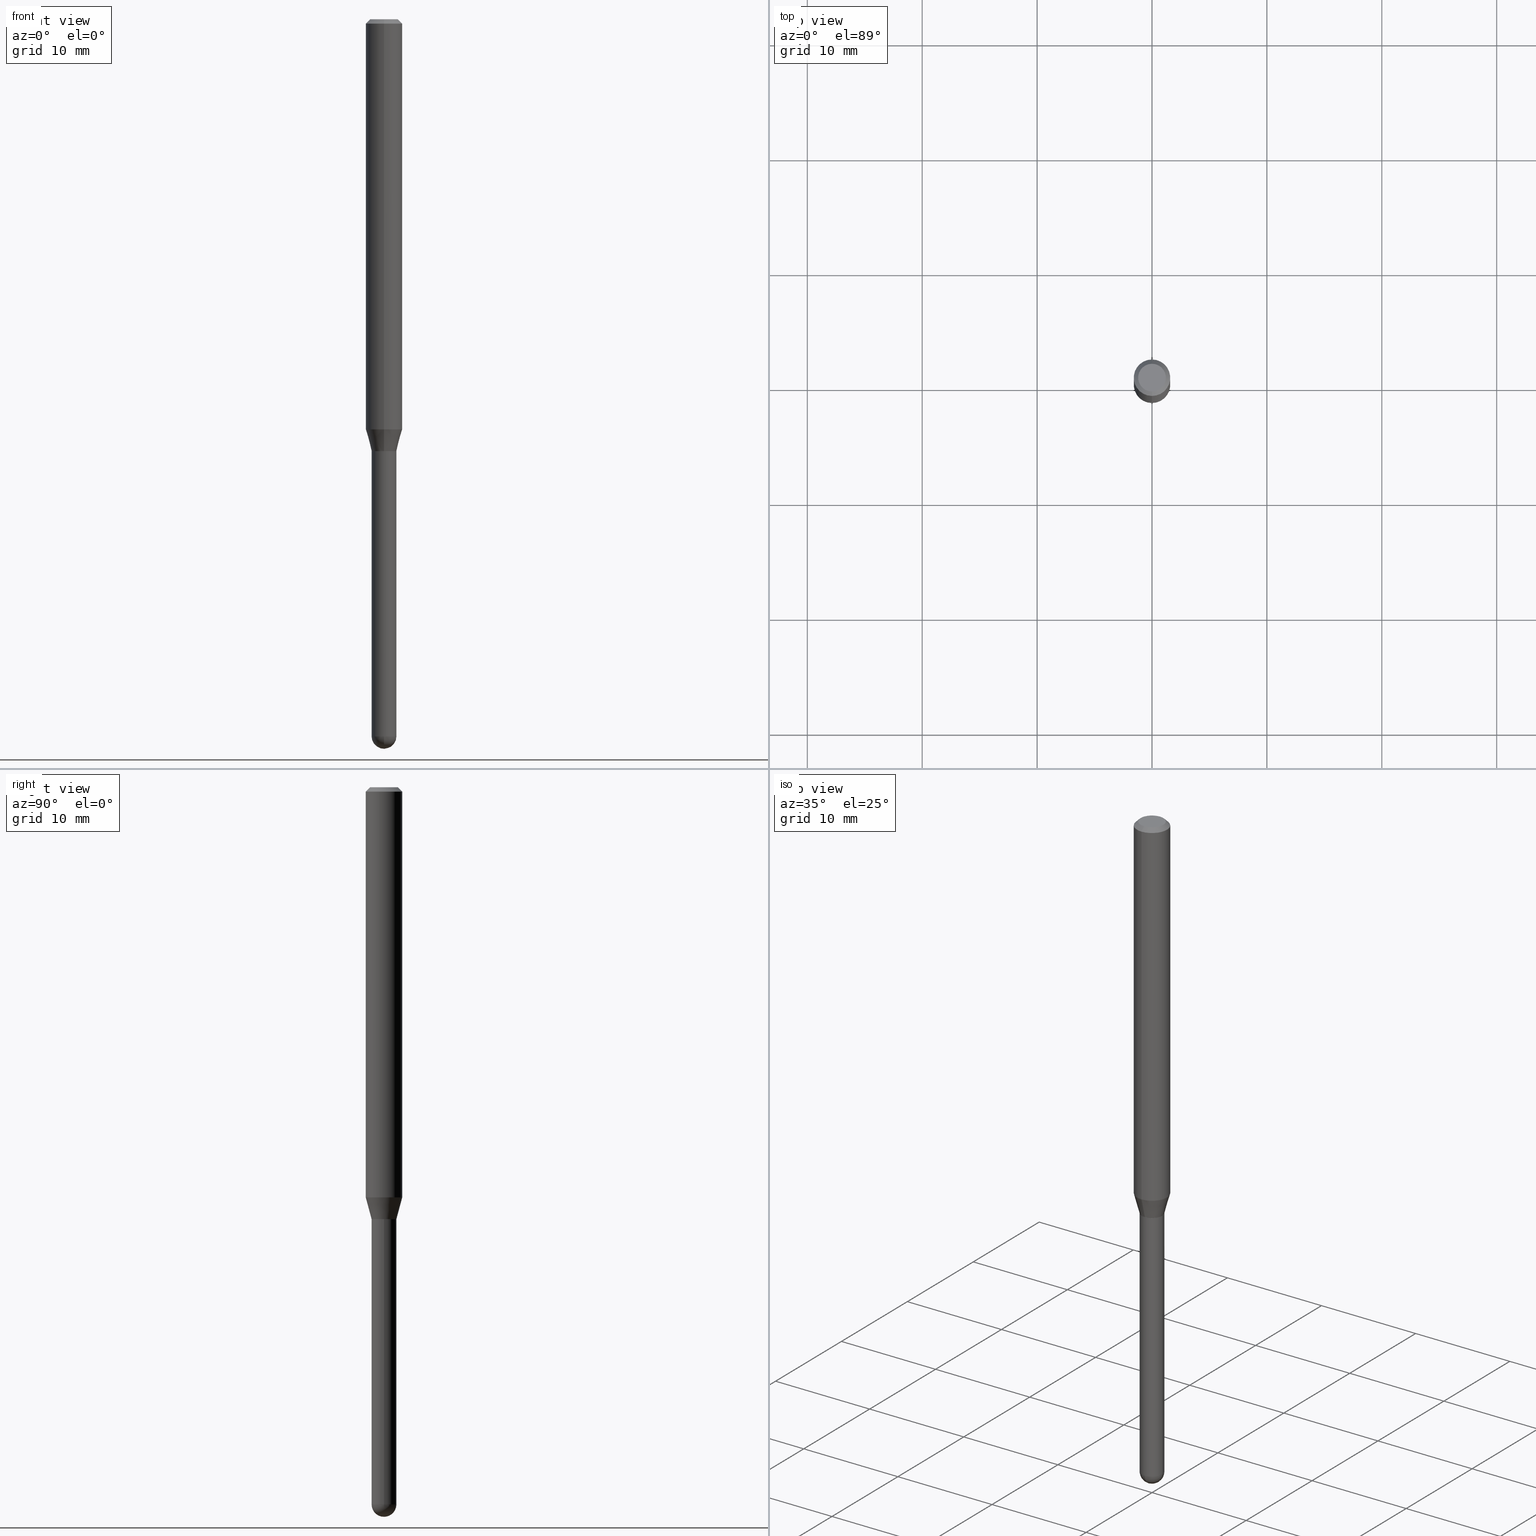
[diagram: canonical four-view strip — front | top / right | iso, engineering-drawing reading convention]
A machine part, canonical four-view strip (front | top / right | iso — engineering-drawing reading convention). The complete STEP part file that produces these views, byte-faithful:
ISO-10303-21;
HEADER;
FILE_DESCRIPTION (( 'STEP AP203' ),
    '1' );
FILE_NAME ('04529.STEP',
    '2024-03-08T20:32:00',
    ( '' ),
    ( '' ),
    'SwSTEP 2.0',
    'SolidWorks 2023',
    '' );
FILE_SCHEMA (( 'CONFIG_CONTROL_DESIGN' ));
ENDSEC;

DATA;
#1 = CARTESIAN_POINT ( 'NONE',  ( 3.316907271900976096E-16, 0.04749999999999999362, -1.985990090085630098E-16 ) ) ;
#2 = DIRECTION ( 'NONE',  ( -1.000000000000000000, 6.982962677686265922E-15, -4.876176775795935793E-29 ) ) ;
#3 = CIRCLE ( 'NONE', #209, 0.04749999999999999362 ) ;
#4 = DIRECTION ( 'NONE',  ( -6.982962677686266711E-15, -1.000000000000000000, 6.427877632151260241E-15 ) ) ;
#5 = APPROVAL_PERSON_ORGANIZATION ( #84, #41, #156 ) ;
#6 = APPROVAL_DATE_TIME ( #482, #41 ) ;
#7 = CARTESIAN_POINT ( 'NONE',  ( 6.006105134470961845E-29, -8.585520139103407419E-15, -2.457500000000000018 ) ) ;
#8 = DIRECTION ( 'NONE',  ( 1.000000000000000000, -6.982962677686276177E-15, 0.000000000000000000 ) ) ;
#9 = EDGE_CURVE ( 'NONE', #407, #503, #321, .T. ) ;
#10 = PERSON_AND_ORGANIZATION ( #325, #186 ) ;
#11 = DIRECTION ( 'NONE',  ( -6.982962677686265922E-15, -1.000000000000000000, 6.427877632151176622E-15 ) ) ;
#12 = EDGE_CURVE ( 'NONE', #73, #64, #259, .T. ) ;
#13 = DIRECTION ( 'NONE',  ( 1.000000000000000000, 0.000000000000000000, 0.000000000000000000 ) ) ;
#14 = DIRECTION ( 'NONE',  ( 6.982962677686266711E-15, 1.000000000000000000, 0.000000000000000000 ) ) ;
#15 = ORIENTED_EDGE ( 'NONE', *, *, #207, .F. ) ;
#16 = CALENDAR_DATE ( 2024, 8, 3 ) ;
#17 = LINE ( 'NONE', #372, #311 ) ;
#18 = ORIENTED_EDGE ( 'NONE', *, *, #12, .F. ) ;
#19 = DIRECTION ( 'NONE',  ( -2.445365064724350852E-29, 3.491629902519587730E-15, 1.000000000000000000 ) ) ;
#20 = CC_DESIGN_PERSON_AND_ORGANIZATION_ASSIGNMENT ( #10, #135, ( #216 ) ) ;
#21 = CIRCLE ( 'NONE', #374, 0.04249999999999999611 ) ;
#22 = ORIENTED_EDGE ( 'NONE', *, *, #114, .F. ) ;
#23 = DIRECTION ( 'NONE',  ( -6.982962677686266711E-15, -1.000000000000000000, 3.491629902519587335E-15 ) ) ;
#24 = CARTESIAN_POINT ( 'NONE',  ( 3.019806626980801702E-16, 0.04249999999999504174, -1.480000000000000426 ) ) ;
#25 = EDGE_CURVE ( 'NONE', #257, #106, #178, .T. ) ;
#26 = CARTESIAN_POINT ( 'NONE',  ( 3.436615762499943104E-29, -4.906993451780404491E-15, -1.405358983848625787 ) ) ;
#27 = CONICAL_SURFACE ( 'NONE', #98, 0.04199999999999999567, 0.7853981633969275844 ) ;
#28 = APPROVAL_PERSON_ORGANIZATION ( #133, #510, #95 ) ;
#29 = CARTESIAN_POINT ( 'NONE',  ( 6.009739591199973545E-29, -8.580315390207031617E-15, -2.457500000000000018 ) ) ;
#30 = EDGE_CURVE ( 'NONE', #99, #458, #3, .T. ) ;
#31 = DIRECTION ( 'NONE',  ( 6.982962677686265922E-15, 1.000000000000000000, -6.427877632151214487E-15 ) ) ;
#32 = VERTEX_POINT ( 'NONE', #477 ) ;
#33 = ADVANCED_FACE ( 'NONE', ( #79 ), #223, .T. ) ;
#34 = AXIS2_PLACEMENT_3D ( 'NONE', #233, #436, #512 ) ;
#35 = AXIS2_PLACEMENT_3D ( 'NONE', #258, #308, #63 ) ;
#36 = DIRECTION ( 'NONE',  ( -4.937700262161976356E-15, -0.7071067811861768693, 0.7071067811869181652 ) ) ;
#37 = CARTESIAN_POINT ( 'NONE',  ( 4.440892098500972274E-16, 0.06249999999999995143, -0.01500000000000028394 ) ) ;
#38 = ADVANCED_FACE ( 'NONE', ( #444 ), #299, .T. ) ;
#39 = CYLINDRICAL_SURFACE ( 'NONE', #171, 0.06250000000000000000 ) ;
#40 = DIRECTION ( 'NONE',  ( 2.445365064724351132E-29, -3.491629902519587730E-15, -1.000000000000000000 ) ) ;
#41 = APPROVAL ( #203, 'UNSPECIFIED' ) ;
#42 = DIRECTION ( 'NONE',  ( -1.000000000000000000, 7.105427357601001070E-15, -4.926315508542082329E-29 ) ) ;
#43 = DIRECTION ( 'NONE',  ( -6.982962677686266711E-15, -1.000000000000000000, 6.427877632151260241E-15 ) ) ;
#44 = AXIS2_PLACEMENT_3D ( 'NONE', #280, #42, #201 ) ;
#45 = ORIENTED_EDGE ( 'NONE', *, *, #357, .T. ) ;
#46 = MECHANICAL_CONTEXT ( 'NONE', #282, 'mechanical' ) ;
#47 = CARTESIAN_POINT ( 'NONE',  ( -0.04250000000000000999, -6.571873223149400401E-15, -2.457500000000000018 ) ) ;
#48 = EDGE_CURVE ( 'NONE', #59, #197, #270, .T. ) ;
#49 = SECURITY_CLASSIFICATION_LEVEL ( 'unclassified' ) ;
#50 = ADVANCED_FACE ( 'NONE', ( #82 ), #428, .T. ) ;
#51 = ORIENTED_EDGE ( 'NONE', *, *, #127, .T. ) ;
#52 = AXIS2_PLACEMENT_3D ( 'NONE', #356, #433, #359 ) ;
#53 = AXIS2_PLACEMENT_3D ( 'NONE', #358, #118, #474 ) ;
#54 = DATE_TIME_ROLE ( 'classification_date' ) ;
#55 = CARTESIAN_POINT ( 'NONE',  ( -3.019806626979823514E-16, -0.04250000000000855871, -2.457500000000000018 ) ) ;
#56 = ADVANCED_FACE ( 'NONE', ( #366 ), #238, .T. ) ;
#57 = CYLINDRICAL_SURFACE ( 'NONE', #363, 0.04249999999999991979 ) ;
#58 = DIMENSIONAL_EXPONENTS ( 1.000000000000000000, 0.000000000000000000, 0.000000000000000000, 0.000000000000000000, 0.000000000000000000, 0.000000000000000000, 0.000000000000000000 ) ;
#59 = VERTEX_POINT ( 'NONE', #283 ) ;
#60 = FACE_OUTER_BOUND ( 'NONE', #291, .T. ) ;
#61 = AXIS2_PLACEMENT_3D ( 'NONE', #450, #498, #14 ) ;
#62 = AXIS2_PLACEMENT_3D ( 'NONE', #504, #188, #88 ) ;
#63 = DIRECTION ( 'NONE',  ( -6.982962677686266711E-15, -1.000000000000000000, 3.491629902519587730E-15 ) ) ;
#64 = VERTEX_POINT ( 'NONE', #318 ) ;
#65 = ADVANCED_FACE ( 'NONE', ( #285 ), #162, .F. ) ;
#66 = LINE ( 'NONE', #219, #396 ) ;
#67 = ORIENTED_EDGE ( 'NONE', *, *, #451, .F. ) ;
#68 = VERTEX_POINT ( 'NONE', #47 ) ;
#69 = AXIS2_PLACEMENT_3D ( 'NONE', #199, #329, #8 ) ;
#70 = EDGE_LOOP ( 'NONE', ( #269, #204, #101, #18 ) ) ;
#71 = VECTOR ( 'NONE', #116, 39.37007874015748143 ) ;
#72 = CARTESIAN_POINT ( 'NONE',  ( -4.364351673553916201E-16, -0.06250000000000000000, 2.182268689074742331E-16 ) ) ;
#73 = VERTEX_POINT ( 'NONE', #37 ) ;
#74 = ORIENTED_EDGE ( 'NONE', *, *, #481, .F. ) ;
#75 = LINE ( 'NONE', #429, #271 ) ;
#76 = DIRECTION ( 'NONE',  ( 1.000000000000000000, -6.982962677686276177E-15, 0.000000000000000000 ) ) ;
#77 = LINE ( 'NONE', #395, #454 ) ;
#78 = CIRCLE ( 'NONE', #413, 0.04250000000000000999 ) ;
#79 = FACE_OUTER_BOUND ( 'NONE', #103, .T. ) ;
#80 = ADVANCED_FACE ( 'NONE', ( #166 ), #475, .T. ) ;
#81 = SPHERICAL_SURFACE ( 'NONE', #200, 0.04249999999999995448 ) ;
#82 = FACE_OUTER_BOUND ( 'NONE', #298, .T. ) ;
#83 = CC_DESIGN_DATE_AND_TIME_ASSIGNMENT ( #292, #410, ( #176 ) ) ;
#84 = PERSON_AND_ORGANIZATION ( #325, #186 ) ;
#85 = FACE_OUTER_BOUND ( 'NONE', #190, .T. ) ;
#86 = DIRECTION ( 'NONE',  ( -2.445365064724351132E-29, 3.491629902519587730E-15, 1.000000000000000000 ) ) ;
#87 = ORIENTED_EDGE ( 'NONE', *, *, #377, .T. ) ;
#88 = DIRECTION ( 'NONE',  ( 1.000000000000000000, -6.982962677686273810E-15, 0.000000000000000000 ) ) ;
#89 = AXIS2_PLACEMENT_3D ( 'NONE', #173, #495, #296 ) ;
#90 = DIRECTION ( 'NONE',  ( -2.445468806185136597E-29, 3.491481338843145583E-15, 1.000000000000000000 ) ) ;
#91 = CIRCLE ( 'NONE', #497, 0.04199999999999999567 ) ;
#92 = ORIENTED_EDGE ( 'NONE', *, *, #48, .F. ) ;
#93 = APPROVAL_STATUS ( 'not_yet_approved' ) ;
#94 = DIRECTION ( 'NONE',  ( -2.445468806185136877E-29, 3.491481338843145188E-15, 1.000000000000000000 ) ) ;
#95 = APPROVAL_ROLE ( '' ) ;
#96 = CALENDAR_DATE ( 2024, 8, 3 ) ;
#97 = CARTESIAN_POINT ( 'NONE',  ( -2.932844324627869123E-16, -0.04200000000000516515, -1.479999999999999982 ) ) ;
#98 = AXIS2_PLACEMENT_3D ( 'NONE', #417, #294, #214 ) ;
#99 = VERTEX_POINT ( 'NONE', #160 ) ;
#100 = CARTESIAN_POINT ( 'NONE',  ( 0.000000000000000000, 0.000000000000000000, 0.000000000000000000 ) ) ;
#101 = ORIENTED_EDGE ( 'NONE', *, *, #370, .T. ) ;
#102 = FACE_OUTER_BOUND ( 'NONE', #462, .T. ) ;
#103 = EDGE_LOOP ( 'NONE', ( #489, #284, #456, #352 ) ) ;
#104 = ADVANCED_FACE ( 'NONE', ( #246 ), #476, .T. ) ;
#105 = CARTESIAN_POINT ( 'NONE',  ( 4.364351673553919652E-16, 0.06249999999999995143, -0.01500000000000028394 ) ) ;
#106 = VERTEX_POINT ( 'NONE', #202 ) ;
#107 = SECURITY_CLASSIFICATION ( '', '', #49 ) ;
#108 = DIRECTION ( 'NONE',  ( 4.937700262164548042E-15, 0.7071067811865451302, -0.7071067811865499042 ) ) ;
#109 = ORIENTED_EDGE ( 'NONE', *, *, #320, .F. ) ;
#110 = ORIENTED_EDGE ( 'NONE', *, *, #140, .T. ) ;
#111 = ORIENTED_EDGE ( 'NONE', *, *, #12, .T. ) ;
#112 = CARTESIAN_POINT ( 'NONE',  ( -0.04249999999999999611, -6.571873223149400401E-15, -1.479999999999999982 ) ) ;
#113 = VERTEX_POINT ( 'NONE', #409 ) ;
#114 = EDGE_CURVE ( 'NONE', #250, #113, #243, .T. ) ;
#115 = CIRCLE ( 'NONE', #406, 0.04250000000000020428 ) ;
#116 = DIRECTION ( 'NONE',  ( -2.445365064724350852E-29, 3.491629902519587730E-15, 1.000000000000000000 ) ) ;
#117 = VERTEX_POINT ( 'NONE', #242 ) ;
#118 = DIRECTION ( 'NONE',  ( -2.445365064724351132E-29, 3.491629902519587730E-15, 1.000000000000000000 ) ) ;
#119 = DIRECTION ( 'NONE',  ( -6.982962677686265922E-15, -1.000000000000000000, 3.483106191921935554E-15 ) ) ;
#120 = CARTESIAN_POINT ( 'NONE',  ( -2.967759138016315464E-16, -0.04250000000000536682, -1.479999999999999760 ) ) ;
#121 = EDGE_CURVE ( 'NONE', #113, #250, #461, .T. ) ;
#122 = DIRECTION ( 'NONE',  ( -6.982962677686266711E-15, -1.000000000000000000, 3.491629902519587730E-15 ) ) ;
#123 = CARTESIAN_POINT ( 'NONE',  ( -4.287811248607203282E-16, -0.06250000000000005551, -0.01499999999999984852 ) ) ;
#124 = DIRECTION ( 'NONE',  ( -2.445365064724351132E-29, 3.491629902519587730E-15, 1.000000000000000000 ) ) ;
#125 = CARTESIAN_POINT ( 'NONE',  ( -4.364351673553569595E-16, -0.06250000000000487110, -1.405358983848625565 ) ) ;
#126 = CARTESIAN_POINT ( 'NONE',  ( 3.619140295792040102E-29, -5.167612255728990266E-15, -1.480000000000000426 ) ) ;
#127 = EDGE_CURVE ( 'NONE', #197, #113, #77, .T. ) ;
#128 =( CONVERSION_BASED_UNIT ( 'INCH', #484 ) LENGTH_UNIT ( ) NAMED_UNIT ( #58 ) );
#129 = CARTESIAN_POINT ( 'NONE',  ( 3.619140295792039541E-29, -5.167612255728989477E-15, -1.479999999999999982 ) ) ;
#130 = CIRCLE ( 'NONE', #340, 0.06250000000000000000 ) ;
#131 = FACE_OUTER_BOUND ( 'NONE', #431, .T. ) ;
#132 = LOCAL_TIME ( 15, 32, 0.000000000000000000, #408 ) ;
#133 = PERSON_AND_ORGANIZATION ( #325, #186 ) ;
#134 = ORIENTED_EDGE ( 'NONE', *, *, #289, .T. ) ;
#135 = PERSON_AND_ORGANIZATION_ROLE ( 'creator' ) ;
#136 = VERTEX_POINT ( 'NONE', #55 ) ;
#137 = DIRECTION ( 'NONE',  ( -6.982962677686265922E-15, -1.000000000000000000, 3.491629902519587730E-15 ) ) ;
#138 = AXIS2_PLACEMENT_3D ( 'NONE', #401, #281, #119 ) ;
#139 = CIRCLE ( 'NONE', #35, 0.04749999999999999362 ) ;
#140 = EDGE_CURVE ( 'NONE', #483, #106, #290, .T. ) ;
#141 = FACE_OUTER_BOUND ( 'NONE', #231, .T. ) ;
#142 = ADVANCED_FACE ( 'NONE', ( #60 ), #57, .F. ) ;
#143 = ORIENTED_EDGE ( 'NONE', *, *, #207, .T. ) ;
#144 = CC_DESIGN_PERSON_AND_ORGANIZATION_ASSIGNMENT ( #371, #253, ( #107 ) ) ;
#145 = MANIFOLD_SOLID_BREP ( 'Body-Move/Copy2[2]', #279 ) ;
#146 = ORIENTED_EDGE ( 'NONE', *, *, #140, .F. ) ;
#147 = DIRECTION ( 'NONE',  ( -2.445365064724350852E-29, 3.491629902519587730E-15, 1.000000000000000000 ) ) ;
#148 = EDGE_CURVE ( 'NONE', #59, #250, #17, .T. ) ;
#149 = FACE_OUTER_BOUND ( 'NONE', #419, .T. ) ;
#150 = ORIENTED_EDGE ( 'NONE', *, *, #418, .F. ) ;
#151 = AXIS2_PLACEMENT_3D ( 'NONE', #485, #159, #439 ) ;
#152 = ORIENTED_EDGE ( 'NONE', *, *, #114, .T. ) ;
#153 = AXIS2_PLACEMENT_3D ( 'NONE', #330, #208, #13 ) ;
#154 = CARTESIAN_POINT ( 'NONE',  ( 3.619140295792039541E-29, -5.167612255728989477E-15, -1.479999999999999982 ) ) ;
#155 = ORIENTED_EDGE ( 'NONE', *, *, #30, .T. ) ;
#156 = APPROVAL_ROLE ( '' ) ;
#157 = EDGE_CURVE ( 'NONE', #302, #32, #331, .T. ) ;
#158 = DIRECTION ( 'NONE',  ( -1.000000000000000000, 6.982962677686265922E-15, -4.883557194083112901E-29 ) ) ;
#159 = DIRECTION ( 'NONE',  ( 2.445365064724351132E-29, -3.491629902519587730E-15, -1.000000000000000000 ) ) ;
#160 = CARTESIAN_POINT ( 'NONE',  ( -3.773273898774340269E-16, -0.04749999999999999362, 1.003592430919151796E-16 ) ) ;
#161 = AXIS2_PLACEMENT_3D ( 'NONE', #154, #361, #198 ) ;
#162 = PLANE ( 'NONE',  #235 ) ;
#163 = ADVANCED_FACE ( 'NONE', ( #141 ), #354, .T. ) ;
#164 = CALENDAR_DATE ( 2024, 8, 3 ) ;
#165 = DIRECTION ( 'NONE',  ( 2.438088387897960049E-29, -3.491481338843145188E-15, -1.000000000000000000 ) ) ;
#166 = FACE_OUTER_BOUND ( 'NONE', #502, .T. ) ;
#167 = EDGE_LOOP ( 'NONE', ( #252, #155 ) ) ;
#168 = APPROVAL_DATE_TIME ( #170, #510 ) ;
#169 = DIRECTION ( 'NONE',  ( 1.000000000000000000, -6.982962677686266711E-15, 4.876176775795935793E-29 ) ) ;
#170 = DATE_AND_TIME ( #375, #132 ) ;
#171 = AXIS2_PLACEMENT_3D ( 'NONE', #240, #313, #315 ) ;
#172 = COORDINATED_UNIVERSAL_TIME_OFFSET ( 5, 0, .BEHIND. ) ;
#173 = CARTESIAN_POINT ( 'NONE',  ( 3.619140295792039541E-29, -5.167612255728989477E-15, -1.479999999999999982 ) ) ;
#174 = EDGE_LOOP ( 'NONE', ( #262, #349, #15, #304 ) ) ;
#175 = APPLICATION_PROTOCOL_DEFINITION ( 'international standard', 'config_control_design', 1994, #234 ) ;
#176 = PRODUCT_DEFINITION ( 'UNKNOWN', '', #216, #317 ) ;
#177 = PLANE ( 'NONE',  #421 ) ;
#178 = CIRCLE ( 'NONE', #69, 0.04249999999999999611 ) ;
#179 = AXIS2_PLACEMENT_3D ( 'NONE', #398, #165, #2 ) ;
#180 = ORIENTED_EDGE ( 'NONE', *, *, #460, .T. ) ;
#181 = DIRECTION ( 'NONE',  ( -6.982962677686265922E-15, -1.000000000000000000, 4.370956789862821150E-15 ) ) ;
#182 = VERTEX_POINT ( 'NONE', #412 ) ;
#183 = CARTESIAN_POINT ( 'NONE',  ( 3.668047597086542918E-31, -5.237444853779404496E-17, -0.01500000000000006710 ) ) ;
#184 = ORIENTED_EDGE ( 'NONE', *, *, #320, .T. ) ;
#185 = AXIS2_PLACEMENT_3D ( 'NONE', #126, #124, #194 ) ;
#186 = ORGANIZATION ( 'UNSPECIFIED', 'UNSPECIFIED', '' ) ;
#187 = ORIENTED_EDGE ( 'NONE', *, *, #339, .F. ) ;
#188 = DIRECTION ( 'NONE',  ( -2.445468806185136597E-29, 3.491481338843145583E-15, 1.000000000000000000 ) ) ;
#189 = DIRECTION ( 'NONE',  ( -6.982962677686265922E-15, -1.000000000000000000, 6.504399984914913214E-15 ) ) ;
#190 = EDGE_LOOP ( 'NONE', ( #67, #260, #464, #305 ) ) ;
#191 = ADVANCED_FACE ( 'NONE', ( #453 ), #27, .T. ) ;
#192 = AXIS2_PLACEMENT_3D ( 'NONE', #100, #420, #23 ) ;
#193 = LOCAL_TIME ( 15, 32, 0.000000000000000000, #172 ) ;
#194 = DIRECTION ( 'NONE',  ( -6.982962677686265922E-15, -1.000000000000000000, 6.504399984914913214E-15 ) ) ;
#195 = FACE_OUTER_BOUND ( 'NONE', #174, .T. ) ;
#196 = DIRECTION ( 'NONE',  ( -2.445365064724351132E-29, 3.491629902519587730E-15, 1.000000000000000000 ) ) ;
#197 = VERTEX_POINT ( 'NONE', #97 ) ;
#198 = DIRECTION ( 'NONE',  ( -6.982962677686265922E-15, -1.000000000000000000, 6.427877632151176622E-15 ) ) ;
#199 = CARTESIAN_POINT ( 'NONE',  ( 3.619293833154002365E-29, -5.167392381487854879E-15, -1.479999999999999982 ) ) ;
#200 = AXIS2_PLACEMENT_3D ( 'NONE', #511, #158, #31 ) ;
#201 = DIRECTION ( 'NONE',  ( -7.105427357601001070E-15, -1.000000000000000000, 0.000000000000000000 ) ) ;
#202 = CARTESIAN_POINT ( 'NONE',  ( 0.04249999999999999611, -5.464168295289522318E-15, -1.479999999999999982 ) ) ;
#203 = APPROVAL_STATUS ( 'not_yet_approved' ) ;
#204 = ORIENTED_EDGE ( 'NONE', *, *, #267, .T. ) ;
#205 = APPROVAL_ROLE ( '' ) ;
#206 = CARTESIAN_POINT ( 'NONE',  ( 3.617917613259677502E-29, -5.165866440777731178E-15, -1.479500000000000259 ) ) ;
#207 = EDGE_CURVE ( 'NONE', #68, #136, #78, .T. ) ;
#208 = DIRECTION ( 'NONE',  ( 0.000000000000000000, 0.000000000000000000, 1.000000000000000000 ) ) ;
#209 = AXIS2_PLACEMENT_3D ( 'NONE', #480, #196, #122 ) ;
#210 = VECTOR ( 'NONE', #108, 39.37007874015748143 ) ;
#211 = DATE_AND_TIME ( #490, #193 ) ;
#212 = DIRECTION ( 'NONE',  ( -2.445468806185136597E-29, 3.491481338843145583E-15, 1.000000000000000000 ) ) ;
#213 = EDGE_CURVE ( 'NONE', #182, #73, #376, .T. ) ;
#214 = DIRECTION ( 'NONE',  ( -6.982962677686265922E-15, -1.000000000000000000, 6.504399984914913214E-15 ) ) ;
#215 = CLOSED_SHELL ( 'NONE', ( #80, #397, #432, #389, #274 ) ) ;
#216 = PRODUCT_DEFINITION_FORMATION_WITH_SPECIFIED_SOURCE ( 'ANY', '', #442, .NOT_KNOWN. ) ;
#217 = DIRECTION ( 'NONE',  ( 1.000000000000000000, -6.982962677686273810E-15, 0.000000000000000000 ) ) ;
#218 = ORIENTED_EDGE ( 'NONE', *, *, #496, .F. ) ;
#219 = CARTESIAN_POINT ( 'NONE',  ( 3.019806626980419597E-16, 0.04249999999999991979, -1.483942708570821896E-16 ) ) ;
#220 = ORIENTED_EDGE ( 'NONE', *, *, #121, .T. ) ;
#221 = ORIENTED_EDGE ( 'NONE', *, *, #370, .F. ) ;
#222 = DIRECTION ( 'NONE',  ( 1.839019923739650408E-15, 0.2588190451025320082, 0.9659258262890650926 ) ) ;
#223 = CONICAL_SURFACE ( 'NONE', #52, 0.04199999999999999567, 0.7853981633969275844 ) ;
#224 = LOCAL_TIME ( 15, 32, 0.000000000000000000, #447 ) ;
#225 = ADVANCED_FACE ( 'NONE', ( #102 ), #177, .F. ) ;
#226 = DIRECTION ( 'NONE',  ( -2.445468806185136597E-29, 3.491481338843145583E-15, 1.000000000000000000 ) ) ;
#227 = ORIENTED_EDGE ( 'NONE', *, *, #357, .F. ) ;
#228 = ORIENTED_EDGE ( 'NONE', *, *, #481, .T. ) ;
#229 = DIRECTION ( 'NONE',  ( 1.000000000000000000, -6.982962677686266711E-15, 4.876176775795935793E-29 ) ) ;
#230 = ADVANCED_FACE ( 'NONE', ( #131 ), #301, .F. ) ;
#231 = EDGE_LOOP ( 'NONE', ( #180, #393, #218, #383 ) ) ;
#232 = CARTESIAN_POINT ( 'NONE',  ( 0.04250000000000000999, -7.170629799649109504E-15, -2.457500000000000018 ) ) ;
#233 = CARTESIAN_POINT ( 'NONE',  ( 0.000000000000000000, 0.000000000000000000, 0.000000000000000000 ) ) ;
#234 = APPLICATION_CONTEXT ( 'configuration controlled 3d designs of mechanical parts and assemblies' ) ;
#235 = AXIS2_PLACEMENT_3D ( 'NONE', #1, #399, #369 ) ;
#236 = CC_DESIGN_SECURITY_CLASSIFICATION ( #107, ( #216 ) ) ;
#237 = LINE ( 'NONE', #443, #347 ) ;
#238 = CYLINDRICAL_SURFACE ( 'NONE', #34, 0.06250000000000000000 ) ;
#239 = ORIENTED_EDGE ( 'NONE', *, *, #339, .T. ) ;
#240 = CARTESIAN_POINT ( 'NONE',  ( 0.000000000000000000, 0.000000000000000000, 0.000000000000000000 ) ) ;
#241 = CARTESIAN_POINT ( 'NONE',  ( 3.668047597086542918E-31, -5.237444853779404496E-17, -0.01500000000000006710 ) ) ;
#242 = CARTESIAN_POINT ( 'NONE',  ( 3.730349362740885756E-16, 0.04249999999999504174, -1.480000000000000426 ) ) ;
#243 = CIRCLE ( 'NONE', #322, 0.04249999999999964917 ) ;
#244 = CIRCLE ( 'NONE', #430, 0.06250000000000000000 ) ;
#245 = CARTESIAN_POINT ( 'NONE',  ( 3.619140295792040102E-29, -5.167612255728990266E-15, -1.480000000000000426 ) ) ;
#246 = FACE_OUTER_BOUND ( 'NONE', #287, .T. ) ;
#247 = ORIENTED_EDGE ( 'NONE', *, *, #272, .F. ) ;
#248 = PERSON_AND_ORGANIZATION_ROLE ( 'design_supplier' ) ;
#249 = CARTESIAN_POINT ( 'NONE',  ( 3.619140295792039541E-29, -5.167612255728989477E-15, -1.479999999999999982 ) ) ;
#250 = VERTEX_POINT ( 'NONE', #387 ) ;
#251 = APPROVAL ( #333, 'UNSPECIFIED' ) ;
#252 = ORIENTED_EDGE ( 'NONE', *, *, #367, .T. ) ;
#253 = PERSON_AND_ORGANIZATION_ROLE ( 'classification_officer' ) ;
#254 = VECTOR ( 'NONE', #94, 39.37007874015748143 ) ;
#255 = CARTESIAN_POINT ( 'NONE',  ( 6.009739591199973545E-29, -8.580315390207031617E-15, -2.457500000000000018 ) ) ;
#256 = EDGE_LOOP ( 'NONE', ( #327, #134, #469, #426 ) ) ;
#257 = VERTEX_POINT ( 'NONE', #112 ) ;
#258 = CARTESIAN_POINT ( 'NONE',  ( 1.601547276928457193E-45, -2.286779361940614204E-31, -6.549317727776521196E-17 ) ) ;
#259 = CIRCLE ( 'NONE', #138, 0.06250000000000000000 ) ;
#260 = ORIENTED_EDGE ( 'NONE', *, *, #157, .T. ) ;
#261 = AXIS2_PLACEMENT_3D ( 'NONE', #423, #226, #217 ) ;
#262 = ORIENTED_EDGE ( 'NONE', *, *, #157, .F. ) ;
#263 = CYLINDRICAL_SURFACE ( 'NONE', #286, 0.04250000000000000999 ) ;
#264 = UNCERTAINTY_MEASURE_WITH_UNIT (LENGTH_MEASURE( 1.000000000000000082E-05 ), #128, 'distance_accuracy_value', 'NONE');
#265 = DIRECTION ( 'NONE',  ( 1.000000000000000000, -6.982962677686273810E-15, 0.000000000000000000 ) ) ;
#266 = ORIENTED_EDGE ( 'NONE', *, *, #344, .T. ) ;
#267 = EDGE_CURVE ( 'NONE', #182, #503, #130, .T. ) ;
#268 = DIRECTION ( 'NONE',  ( -6.982962677686265922E-15, -1.000000000000000000, 6.427877632151176622E-15 ) ) ;
#269 = ORIENTED_EDGE ( 'NONE', *, *, #213, .F. ) ;
#270 = CIRCLE ( 'NONE', #185, 0.04199999999999999567 ) ;
#271 = VECTOR ( 'NONE', #147, 39.37007874015748143 ) ;
#272 = EDGE_CURVE ( 'NONE', #458, #73, #384, .T. ) ;
#273 = DIRECTION ( 'NONE',  ( -2.445365064724351132E-29, 3.491629902519587730E-15, 1.000000000000000000 ) ) ;
#274 = ADVANCED_FACE ( 'NONE', ( #149 ), #263, .T. ) ;
#275 =( NAMED_UNIT ( * ) SI_UNIT ( $, .STERADIAN. ) SOLID_ANGLE_UNIT ( ) );
#276 = CARTESIAN_POINT ( 'NONE',  ( -2.967759138016315464E-16, -0.04250000000000536682, -1.479999999999999760 ) ) ;
#277 = DIRECTION ( 'NONE',  ( -2.445468806185136877E-29, 3.491481338843145188E-15, 1.000000000000000000 ) ) ;
#278 = DIRECTION ( 'NONE',  ( -2.445365064724351132E-29, 3.491629902519587730E-15, 1.000000000000000000 ) ) ;
#279 = CLOSED_SHELL ( 'NONE', ( #230, #33, #104, #56, #163, #38, #491, #50, #65, #225, #191, #142 ) ) ;
#280 = CARTESIAN_POINT ( 'NONE',  ( 6.006105134470961845E-29, -8.585520139103407419E-15, -2.457500000000000018 ) ) ;
#281 = DIRECTION ( 'NONE',  ( -2.445365064724351132E-29, 3.491629902519587730E-15, 1.000000000000000000 ) ) ;
#282 = APPLICATION_CONTEXT ( 'configuration controlled 3d designs of mechanical parts and assemblies' ) ;
#283 = CARTESIAN_POINT ( 'NONE',  ( 3.002043058586776009E-16, 0.04199999999999483313, -1.480000000000000648 ) ) ;
#284 = ORIENTED_EDGE ( 'NONE', *, *, #148, .T. ) ;
#285 = FACE_OUTER_BOUND ( 'NONE', #167, .T. ) ;
#286 = AXIS2_PLACEMENT_3D ( 'NONE', #350, #425, #229 ) ;
#287 = EDGE_LOOP ( 'NONE', ( #306, #391, #239, #247 ) ) ;
#288 = PERSON_AND_ORGANIZATION ( #325, #186 ) ;
#289 = EDGE_CURVE ( 'NONE', #117, #407, #115, .T. ) ;
#290 = LINE ( 'NONE', #381, #254 ) ;
#291 = EDGE_LOOP ( 'NONE', ( #109, #468, #45, #220 ) ) ;
#292 = DATE_AND_TIME ( #16, #224 ) ;
#293 = EDGE_CURVE ( 'NONE', #117, #182, #392, .T. ) ;
#294 = DIRECTION ( 'NONE',  ( -2.445365064724351132E-29, 3.491629902519587730E-15, 1.000000000000000000 ) ) ;
#295 = APPLICATION_PROTOCOL_DEFINITION ( 'international standard', 'config_control_design', 1994, #282 ) ;
#296 = DIRECTION ( 'NONE',  ( -6.982962677686265922E-15, -1.000000000000000000, 6.427877632151176622E-15 ) ) ;
#297 = PRODUCT_DEFINITION_SHAPE ( 'NONE', 'NONE',  #176 ) ;
#298 = EDGE_LOOP ( 'NONE', ( #150, #385, #314, #111 ) ) ;
#299 = CONICAL_SURFACE ( 'NONE', #506, 0.04250000000000020428, 0.2617993877991576235 ) ;
#300 = AXIS2_PLACEMENT_3D ( 'NONE', #7, #402, #353 ) ;
#301 = CYLINDRICAL_SURFACE ( 'NONE', #192, 0.04249999999999991979 ) ;
#302 = VERTEX_POINT ( 'NONE', #309 ) ;
#303 = DIRECTION ( 'NONE',  ( 1.000000000000000000, -6.982962677686273810E-15, 0.000000000000000000 ) ) ;
#304 = ORIENTED_EDGE ( 'NONE', *, *, #377, .F. ) ;
#305 = ORIENTED_EDGE ( 'NONE', *, *, #344, .F. ) ;
#306 = ORIENTED_EDGE ( 'NONE', *, *, #30, .F. ) ;
#307 = ORIENTED_EDGE ( 'NONE', *, *, #213, .T. ) ;
#308 = DIRECTION ( 'NONE',  ( -2.445365064724351132E-29, 3.491629902519587730E-15, 1.000000000000000000 ) ) ;
#309 = CARTESIAN_POINT ( 'NONE',  ( 6.111854787098336202E-29, -8.731305721556052844E-15, -2.500000000000000000 ) ) ;
#310 = ORIENTED_EDGE ( 'NONE', *, *, #48, .T. ) ;
#311 = VECTOR ( 'NONE', #448, 39.37007874015748143 ) ;
#312 = ORIENTED_EDGE ( 'NONE', *, *, #496, .T. ) ;
#313 = DIRECTION ( 'NONE',  ( -2.445365064724351132E-29, 3.491629902519587730E-15, 1.000000000000000000 ) ) ;
#314 = ORIENTED_EDGE ( 'NONE', *, *, #272, .T. ) ;
#315 = DIRECTION ( 'NONE',  ( -6.982962677686265922E-15, -1.000000000000000000, 3.491629902519587730E-15 ) ) ;
#316 = MANIFOLD_SOLID_BREP ( 'Body-Move/Copy2[1]', #215 ) ;
#317 = DESIGN_CONTEXT ( 'detailed design', #234, 'design' ) ;
#318 = CARTESIAN_POINT ( 'NONE',  ( -4.364351673553912750E-16, -0.06250000000000005551, -0.01499999999999984852 ) ) ;
#319 = DIRECTION ( 'NONE',  ( -4.851104656540964275E-15, -0.7071067811865500152, -0.7071067811865450192 ) ) ;
#320 = EDGE_CURVE ( 'NONE', #117, #250, #66, .T. ) ;
#321 = LINE ( 'NONE', #276, #405 ) ;
#322 = AXIS2_PLACEMENT_3D ( 'NONE', #362, #86, #4 ) ;
#323 = LOCAL_TIME ( 15, 32, 0.000000000000000000, #472 ) ;
#324 = DIRECTION ( 'NONE',  ( -2.445365064724351132E-29, 3.491629902519587730E-15, 1.000000000000000000 ) ) ;
#325 = PERSON ( 'UNSPECIFIED', 'UNSPECIFIED', 'UNSPECIFIED', ('UNSPECIFIED'), ('UNSPECIFIED'), ('UNSPECIFIED') ) ;
#326 = DIRECTION ( 'NONE',  ( 6.982962677686265922E-15, 1.000000000000000000, -3.483106191921935554E-15 ) ) ;
#327 = ORIENTED_EDGE ( 'NONE', *, *, #293, .F. ) ;
#328 = SPHERICAL_SURFACE ( 'NONE', #300, 0.04249999999999995448 ) ;
#329 = DIRECTION ( 'NONE',  ( -2.445468806185136597E-29, 3.491481338843145583E-15, 1.000000000000000000 ) ) ;
#330 = CARTESIAN_POINT ( 'NONE',  ( 0.000000000000000000, 0.000000000000000000, 0.000000000000000000 ) ) ;
#331 = CIRCLE ( 'NONE', #61, 0.04249999999999995448 ) ;
#332 = CC_DESIGN_APPROVAL ( #41, ( #107 ) ) ;
#333 = APPROVAL_STATUS ( 'not_yet_approved' ) ;
#334 = CARTESIAN_POINT ( 'NONE',  ( 0.000000000000000000, 0.000000000000000000, 0.000000000000000000 ) ) ;
#335 = ORIENTED_EDGE ( 'NONE', *, *, #25, .T. ) ;
#336 = PERSON_AND_ORGANIZATION ( #325, #186 ) ;
#337 = ORIENTED_EDGE ( 'NONE', *, *, #501, .F. ) ;
#338 = DIRECTION ( 'NONE',  ( -2.445365064724350852E-29, 3.491629902519587730E-15, 1.000000000000000000 ) ) ;
#339 = EDGE_CURVE ( 'NONE', #64, #73, #244, .T. ) ;
#340 = AXIS2_PLACEMENT_3D ( 'NONE', #26, #273, #181 ) ;
#341 = ADVANCED_BREP_SHAPE_REPRESENTATION ( '04529', ( #316, #145, #153 ), #380 ) ;
#342 = ORIENTED_EDGE ( 'NONE', *, *, #403, .F. ) ;
#343 = DIRECTION ( 'NONE',  ( -2.445365064724350852E-29, 3.491629902519587730E-15, 1.000000000000000000 ) ) ;
#344 = EDGE_CURVE ( 'NONE', #136, #483, #437, .T. ) ;
#345 = AXIS2_PLACEMENT_3D ( 'NONE', #206, #404, #43 ) ;
#346 = DIRECTION ( 'NONE',  ( -6.982962677686265922E-15, -1.000000000000000000, 3.483106191921935554E-15 ) ) ;
#347 = VECTOR ( 'NONE', #277, 39.37007874015748143 ) ;
#348 = AXIS2_PLACEMENT_3D ( 'NONE', #29, #463, #265 ) ;
#349 = ORIENTED_EDGE ( 'NONE', *, *, #451, .T. ) ;
#350 = CARTESIAN_POINT ( 'NONE',  ( 0.000000000000000000, 0.000000000000000000, 0.000000000000000000 ) ) ;
#351 = CC_DESIGN_PERSON_AND_ORGANIZATION_ASSIGNMENT ( #288, #487, ( #176 ) ) ;
#352 = ORIENTED_EDGE ( 'NONE', *, *, #127, .F. ) ;
#353 = DIRECTION ( 'NONE',  ( 6.982962677686265922E-15, 1.000000000000000000, -6.427877632151214487E-15 ) ) ;
#354 = CONICAL_SURFACE ( 'NONE', #89, 0.04250000000000020428, 0.2617993877991576235 ) ;
#355 = FACE_OUTER_BOUND ( 'NONE', #378, .T. ) ;
#356 = CARTESIAN_POINT ( 'NONE',  ( 3.619140295792040102E-29, -5.167612255728990266E-15, -1.480000000000000426 ) ) ;
#357 = EDGE_CURVE ( 'NONE', #407, #113, #75, .T. ) ;
#358 = CARTESIAN_POINT ( 'NONE',  ( 3.436615762499943104E-29, -4.906993451780404491E-15, -1.405358983848625787 ) ) ;
#359 = DIRECTION ( 'NONE',  ( -6.982962677686265922E-15, -1.000000000000000000, 6.504399984914913214E-15 ) ) ;
#360 = PRODUCT_RELATED_PRODUCT_CATEGORY ( 'detail', '', ( #442 ) ) ;
#361 = DIRECTION ( 'NONE',  ( -2.445365064724351132E-29, 3.491629902519587730E-15, 1.000000000000000000 ) ) ;
#362 = CARTESIAN_POINT ( 'NONE',  ( 3.617917613259677502E-29, -5.165866440777731178E-15, -1.479500000000000259 ) ) ;
#363 = AXIS2_PLACEMENT_3D ( 'NONE', #334, #492, #457 ) ;
#364 = CIRCLE ( 'NONE', #62, 0.04250000000000000999 ) ;
#365 = SHAPE_DEFINITION_REPRESENTATION ( #297, #341 ) ;
#366 = FACE_OUTER_BOUND ( 'NONE', #509, .T. ) ;
#367 = EDGE_CURVE ( 'NONE', #458, #99, #139, .T. ) ;
#368 = APPROVAL_DATE_TIME ( #211, #251 ) ;
#369 = DIRECTION ( 'NONE',  ( 6.982962677686265922E-15, 1.000000000000000000, -3.491629902519587730E-15 ) ) ;
#370 = EDGE_CURVE ( 'NONE', #503, #64, #390, .T. ) ;
#371 = PERSON_AND_ORGANIZATION ( #325, #186 ) ;
#372 = CARTESIAN_POINT ( 'NONE',  ( 2.984279490192782363E-16, 0.04199999999999483313, -1.480000000000000648 ) ) ;
#373 = AXIS2_PLACEMENT_3D ( 'NONE', #241, #40, #326 ) ;
#374 = AXIS2_PLACEMENT_3D ( 'NONE', #438, #440, #76 ) ;
#375 = CALENDAR_DATE ( 2024, 8, 3 ) ;
#376 = LINE ( 'NONE', #459, #379 ) ;
#377 = EDGE_CURVE ( 'NONE', #32, #68, #388, .T. ) ;
#378 = EDGE_LOOP ( 'NONE', ( #228, #335 ) ) ;
#379 = VECTOR ( 'NONE', #19, 39.37007874015748143 ) ;
#380 =( GEOMETRIC_REPRESENTATION_CONTEXT ( 3 ) GLOBAL_UNCERTAINTY_ASSIGNED_CONTEXT ( ( #264 ) ) GLOBAL_UNIT_ASSIGNED_CONTEXT ( ( #128, #394, #275 ) ) REPRESENTATION_CONTEXT ( 'NONE', 'WORKASPACE' ) );
#381 = CARTESIAN_POINT ( 'NONE',  ( 0.04250000000000000999, -2.967759138016664042E-16, 2.072375129713273202E-30 ) ) ;
#382 = EDGE_CURVE ( 'NONE', #483, #32, #364, .T. ) ;
#383 = ORIENTED_EDGE ( 'NONE', *, *, #9, .F. ) ;
#384 = LINE ( 'NONE', #105, #210 ) ;
#385 = ORIENTED_EDGE ( 'NONE', *, *, #367, .F. ) ;
#386 = DIRECTION ( 'NONE',  ( -2.445365064724351132E-29, 3.491629902519587730E-15, 1.000000000000000000 ) ) ;
#387 = CARTESIAN_POINT ( 'NONE',  ( 3.019806626980771627E-16, 0.04249999999999461153, -1.479500000000000481 ) ) ;
#388 = CIRCLE ( 'NONE', #261, 0.04250000000000000999 ) ;
#389 = ADVANCED_FACE ( 'NONE', ( #85 ), #81, .T. ) ;
#390 = LINE ( 'NONE', #72, #71 ) ;
#391 = ORIENTED_EDGE ( 'NONE', *, *, #418, .T. ) ;
#392 = LINE ( 'NONE', #24, #445 ) ;
#393 = ORIENTED_EDGE ( 'NONE', *, *, #293, .T. ) ;
#394 =( NAMED_UNIT ( * ) PLANE_ANGLE_UNIT ( ) SI_UNIT ( $, .RADIAN. ) );
#395 = CARTESIAN_POINT ( 'NONE',  ( -2.932844324627869123E-16, -0.04200000000000516515, -1.479999999999999982 ) ) ;
#396 = VECTOR ( 'NONE', #343, 39.37007874015748143 ) ;
#397 = ADVANCED_FACE ( 'NONE', ( #195 ), #328, .T. ) ;
#398 = CARTESIAN_POINT ( 'NONE',  ( 2.967759138017024946E-16, 0.04249999999999483358, -1.480000000000000426 ) ) ;
#399 = DIRECTION ( 'NONE',  ( 2.445365064724350852E-29, -3.491629902519587730E-15, -1.000000000000000000 ) ) ;
#400 = PLANE ( 'NONE',  #179 ) ;
#401 = CARTESIAN_POINT ( 'NONE',  ( 3.668047597086542918E-31, -5.237444853779404496E-17, -0.01500000000000006710 ) ) ;
#402 = DIRECTION ( 'NONE',  ( -1.000000000000000000, 6.982962677686265922E-15, -4.883557194083112901E-29 ) ) ;
#403 = EDGE_CURVE ( 'NONE', #197, #59, #91, .T. ) ;
#404 = DIRECTION ( 'NONE',  ( -2.445365064724351132E-29, 3.491629902519587730E-15, 1.000000000000000000 ) ) ;
#405 = VECTOR ( 'NONE', #471, 39.37007874015748143 ) ;
#406 = AXIS2_PLACEMENT_3D ( 'NONE', #499, #386, #268 ) ;
#407 = VERTEX_POINT ( 'NONE', #120 ) ;
#408 = COORDINATED_UNIVERSAL_TIME_OFFSET ( 5, 0, .BEHIND. ) ;
#409 = CARTESIAN_POINT ( 'NONE',  ( -2.967759138016267640E-16, -0.04250000000000468681, -1.479499999999999815 ) ) ;
#410 = DATE_TIME_ROLE ( 'creation_date' ) ;
#411 = PERSON_AND_ORGANIZATION_ROLE ( 'design_owner' ) ;
#412 = CARTESIAN_POINT ( 'NONE',  ( 4.440892098500971288E-16, 0.06249999999999512196, -1.405358983848626009 ) ) ;
#413 = AXIS2_PLACEMENT_3D ( 'NONE', #255, #212, #303 ) ;
#414 = CIRCLE ( 'NONE', #161, 0.04250000000000020428 ) ;
#415 = ORIENTED_EDGE ( 'NONE', *, *, #148, .F. ) ;
#416 = DATE_AND_TIME ( #96, #488 ) ;
#417 = CARTESIAN_POINT ( 'NONE',  ( 3.619140295792040102E-29, -5.167612255728990266E-15, -1.480000000000000426 ) ) ;
#418 = EDGE_CURVE ( 'NONE', #99, #64, #470, .T. ) ;
#419 = EDGE_LOOP ( 'NONE', ( #337, #143, #266, #110, #493 ) ) ;
#420 = DIRECTION ( 'NONE',  ( -2.445365064724351132E-29, 3.491629902519587730E-15, 1.000000000000000000 ) ) ;
#421 = AXIS2_PLACEMENT_3D ( 'NONE', #249, #338, #137 ) ;
#422 = CC_DESIGN_APPROVAL ( #510, ( #176 ) ) ;
#423 = CARTESIAN_POINT ( 'NONE',  ( 6.009739591199973545E-29, -8.580315390207031617E-15, -2.457500000000000018 ) ) ;
#424 = CC_DESIGN_PERSON_AND_ORGANIZATION_ASSIGNMENT ( #494, #411, ( #442 ) ) ;
#425 = DIRECTION ( 'NONE',  ( -2.445468806185136597E-29, 3.491481338843145583E-15, 1.000000000000000000 ) ) ;
#426 = ORIENTED_EDGE ( 'NONE', *, *, #267, .F. ) ;
#427 = ORIENTED_EDGE ( 'NONE', *, *, #382, .T. ) ;
#428 = CONICAL_SURFACE ( 'NONE', #151, 0.06250000000000000000, 0.7853981633974483900 ) ;
#429 = CARTESIAN_POINT ( 'NONE',  ( -2.967759138016657633E-16, -0.04249999999999991979, 1.483942708570821896E-16 ) ) ;
#430 = AXIS2_PLACEMENT_3D ( 'NONE', #183, #466, #346 ) ;
#431 = EDGE_LOOP ( 'NONE', ( #446, #184, #152, #227 ) ) ;
#432 = ADVANCED_FACE ( 'NONE', ( #355 ), #400, .F. ) ;
#433 = DIRECTION ( 'NONE',  ( -2.445365064724351132E-29, 3.491629902519587730E-15, 1.000000000000000000 ) ) ;
#434 = EDGE_LOOP ( 'NONE', ( #415, #310, #51, #22 ) ) ;
#435 =( LENGTH_UNIT ( ) NAMED_UNIT ( * ) SI_UNIT ( $, .METRE. ) );
#436 = DIRECTION ( 'NONE',  ( -2.445365064724351132E-29, 3.491629902519587730E-15, 1.000000000000000000 ) ) ;
#437 = CIRCLE ( 'NONE', #348, 0.04250000000000000999 ) ;
#438 = CARTESIAN_POINT ( 'NONE',  ( 3.619293833154002365E-29, -5.167392381487854879E-15, -1.479999999999999982 ) ) ;
#439 = DIRECTION ( 'NONE',  ( 6.982962677686265922E-15, 1.000000000000000000, -3.483106191921935554E-15 ) ) ;
#440 = DIRECTION ( 'NONE',  ( -2.445468806185136597E-29, 3.491481338843145583E-15, 1.000000000000000000 ) ) ;
#441 = CARTESIAN_POINT ( 'NONE',  ( 0.000000000000000000, 0.000000000000000000, 0.000000000000000000 ) ) ;
#442 = PRODUCT ( '04529', '04529', '', ( #46 ) ) ;
#443 = CARTESIAN_POINT ( 'NONE',  ( -0.04250000000000000999, 3.019806626980426500E-16, -2.090547413358335560E-30 ) ) ;
#444 = FACE_OUTER_BOUND ( 'NONE', #256, .T. ) ;
#445 = VECTOR ( 'NONE', #222, 39.37007874015748854 ) ;
#446 = ORIENTED_EDGE ( 'NONE', *, *, #289, .F. ) ;
#447 = COORDINATED_UNIVERSAL_TIME_OFFSET ( 5, 0, .BEHIND. ) ;
#448 = DIRECTION ( 'NONE',  ( 5.024295867785445738E-15, 0.7071067811861817543, 0.7071067811869132802 ) ) ;
#449 = COORDINATED_UNIVERSAL_TIME_OFFSET ( 5, 0, .BEHIND. ) ;
#450 = CARTESIAN_POINT ( 'NONE',  ( 6.006105134470961845E-29, -8.585520139103407419E-15, -2.457500000000000018 ) ) ;
#451 = EDGE_CURVE ( 'NONE', #302, #136, #467, .T. ) ;
#452 = PERSON_AND_ORGANIZATION ( #325, #186 ) ;
#453 = FACE_OUTER_BOUND ( 'NONE', #434, .T. ) ;
#454 = VECTOR ( 'NONE', #36, 39.37007874015748143 ) ;
#455 = CC_DESIGN_APPROVAL ( #251, ( #216 ) ) ;
#456 = ORIENTED_EDGE ( 'NONE', *, *, #121, .F. ) ;
#457 = DIRECTION ( 'NONE',  ( -6.982962677686266711E-15, -1.000000000000000000, 3.491629902519587335E-15 ) ) ;
#458 = VERTEX_POINT ( 'NONE', #507 ) ;
#459 = CARTESIAN_POINT ( 'NONE',  ( 4.440892098500625669E-16, 0.06250000000000000000, -2.182268689074742331E-16 ) ) ;
#460 = EDGE_CURVE ( 'NONE', #407, #117, #414, .T. ) ;
#461 = CIRCLE ( 'NONE', #345, 0.04249999999999964917 ) ;
#462 = EDGE_LOOP ( 'NONE', ( #342, #92 ) ) ;
#463 = DIRECTION ( 'NONE',  ( -2.445468806185136597E-29, 3.491481338843145583E-15, 1.000000000000000000 ) ) ;
#464 = ORIENTED_EDGE ( 'NONE', *, *, #382, .F. ) ;
#465 = AXIS2_PLACEMENT_3D ( 'NONE', #441, #90, #169 ) ;
#466 = DIRECTION ( 'NONE',  ( -2.445365064724351132E-29, 3.491629902519587730E-15, 1.000000000000000000 ) ) ;
#467 = CIRCLE ( 'NONE', #44, 0.04249999999999995448 ) ;
#468 = ORIENTED_EDGE ( 'NONE', *, *, #460, .F. ) ;
#469 = ORIENTED_EDGE ( 'NONE', *, *, #9, .T. ) ;
#470 = LINE ( 'NONE', #123, #500 ) ;
#471 = DIRECTION ( 'NONE',  ( -1.807323732225379838E-15, -0.2588190451025252914, 0.9659258262890670910 ) ) ;
#472 = COORDINATED_UNIVERSAL_TIME_OFFSET ( 5, 0, .BEHIND. ) ;
#473 = CC_DESIGN_DATE_AND_TIME_ASSIGNMENT ( #416, #54, ( #107 ) ) ;
#474 = DIRECTION ( 'NONE',  ( -6.982962677686265922E-15, -1.000000000000000000, 4.370956789862821150E-15 ) ) ;
#475 = CYLINDRICAL_SURFACE ( 'NONE', #465, 0.04250000000000000999 ) ;
#476 = CONICAL_SURFACE ( 'NONE', #373, 0.06250000000000000000, 0.7853981633974483900 ) ;
#477 = CARTESIAN_POINT ( 'NONE',  ( 2.967759138017263083E-16, 0.04249999999999140576, -2.457500000000000462 ) ) ;
#478 = CIRCLE ( 'NONE', #53, 0.06250000000000000000 ) ;
#479 = FACE_OUTER_BOUND ( 'NONE', #70, .T. ) ;
#480 = CARTESIAN_POINT ( 'NONE',  ( 1.601547276928457193E-45, -2.286779361940614204E-31, -6.549317727776521196E-17 ) ) ;
#481 = EDGE_CURVE ( 'NONE', #106, #257, #21, .T. ) ;
#482 = DATE_AND_TIME ( #164, #323 ) ;
#483 = VERTEX_POINT ( 'NONE', #232 ) ;
#484 = LENGTH_MEASURE_WITH_UNIT ( LENGTH_MEASURE( 0.02539999999999999897 ), #435 );
#485 = CARTESIAN_POINT ( 'NONE',  ( 3.668047597086542918E-31, -5.237444853779404496E-17, -0.01500000000000006710 ) ) ;
#486 = CC_DESIGN_PERSON_AND_ORGANIZATION_ASSIGNMENT ( #452, #248, ( #216 ) ) ;
#487 = PERSON_AND_ORGANIZATION_ROLE ( 'creator' ) ;
#488 = LOCAL_TIME ( 15, 32, 0.000000000000000000, #449 ) ;
#489 = ORIENTED_EDGE ( 'NONE', *, *, #403, .T. ) ;
#490 = CALENDAR_DATE ( 2024, 8, 3 ) ;
#491 = ADVANCED_FACE ( 'NONE', ( #479 ), #39, .T. ) ;
#492 = DIRECTION ( 'NONE',  ( -2.445365064724351132E-29, 3.491629902519587730E-15, 1.000000000000000000 ) ) ;
#493 = ORIENTED_EDGE ( 'NONE', *, *, #25, .F. ) ;
#494 = PERSON_AND_ORGANIZATION ( #325, #186 ) ;
#495 = DIRECTION ( 'NONE',  ( -2.445365064724351132E-29, 3.491629902519587730E-15, 1.000000000000000000 ) ) ;
#496 = EDGE_CURVE ( 'NONE', #503, #182, #478, .T. ) ;
#497 = AXIS2_PLACEMENT_3D ( 'NONE', #245, #324, #189 ) ;
#498 = DIRECTION ( 'NONE',  ( 1.000000000000000000, -6.982962677686265922E-15, 4.883557194083112340E-29 ) ) ;
#499 = CARTESIAN_POINT ( 'NONE',  ( 3.619140295792039541E-29, -5.167612255728989477E-15, -1.479999999999999982 ) ) ;
#500 = VECTOR ( 'NONE', #319, 39.37007874015748143 ) ;
#501 = EDGE_CURVE ( 'NONE', #68, #257, #237, .T. ) ;
#502 = EDGE_LOOP ( 'NONE', ( #87, #505, #74, #146, #427 ) ) ;
#503 = VERTEX_POINT ( 'NONE', #125 ) ;
#504 = CARTESIAN_POINT ( 'NONE',  ( 6.009739591199973545E-29, -8.580315390207031617E-15, -2.457500000000000018 ) ) ;
#505 = ORIENTED_EDGE ( 'NONE', *, *, #501, .T. ) ;
#506 = AXIS2_PLACEMENT_3D ( 'NONE', #129, #278, #11 ) ;
#507 = CARTESIAN_POINT ( 'NONE',  ( 3.840629472727447874E-16, 0.04749999999999999362, -2.313455976474456035E-16 ) ) ;
#508 = APPROVAL_PERSON_ORGANIZATION ( #336, #251, #205 ) ;
#509 = EDGE_LOOP ( 'NONE', ( #312, #307, #187, #221 ) ) ;
#510 = APPROVAL ( #93, 'UNSPECIFIED' ) ;
#511 = CARTESIAN_POINT ( 'NONE',  ( 6.006105134470961845E-29, -8.585520139103407419E-15, -2.457500000000000018 ) ) ;
#512 = DIRECTION ( 'NONE',  ( -6.982962677686265922E-15, -1.000000000000000000, 3.491629902519587730E-15 ) ) ;
ENDSEC;
END-ISO-10303-21;
